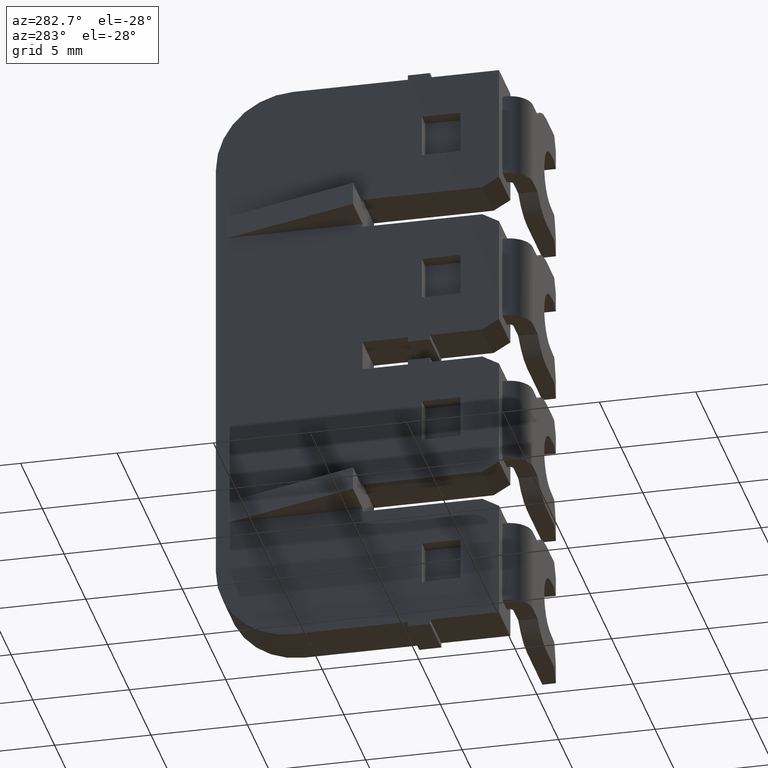
[diagram: clean part render]
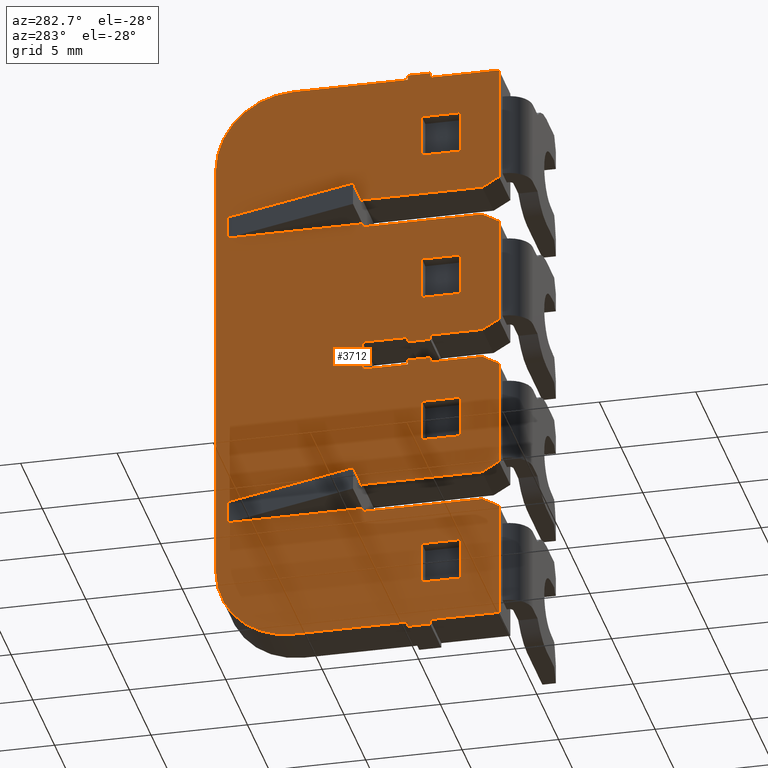
[diagram: same view with one face highlighted and labeled with its STEP entity id]
A machine part, auxiliary view. The second image highlights one B-rep face of the part: STEP entity #3712.
In plain terms, the highlighted planar face has unit normal (1, 0, -0).
Its self-contained STEP definition (entity closure, byte-faithful):
#25 = VECTOR ( 'NONE', #3469, 1000.000000000000000 ) ;
#26 = VECTOR ( 'NONE', #3461, 1000.000000000000000 ) ;
#28 = VECTOR ( 'NONE', #3502, 1000.000000000000000 ) ;
#30 = VECTOR ( 'NONE', #2299, 1000.000000000000000 ) ;
#51 = VECTOR ( 'NONE', #2448, 1000.000000000000000 ) ;
#54 = VECTOR ( 'NONE', #2279, 1000.000000000000000 ) ;
#64 = CIRCLE ( 'NONE', #91, 4.000000000000003600 ) ;
#69 = VECTOR ( 'NONE', #2362, 1000.000000000000000 ) ;
#72 = VECTOR ( 'NONE', #2409, 1000.000000000000000 ) ;
#74 = VECTOR ( 'NONE', #2357, 1000.000000000000000 ) ;
#79 = VECTOR ( 'NONE', #2340, 1000.000000000000000 ) ;
#89 = AXIS2_PLACEMENT_3D ( 'NONE', #2267, #2276, #2323 ) ;
#91 = AXIS2_PLACEMENT_3D ( 'NONE', #2284, #2306, #2290 ) ;
#94 = VECTOR ( 'NONE', #2312, 1000.000000000000000 ) ;
#96 = VECTOR ( 'NONE', #2350, 1000.000000000000000 ) ;
#98 = VECTOR ( 'NONE', #2329, 1000.000000000000000 ) ;
#102 = VECTOR ( 'NONE', #2436, 1000.000000000000000 ) ;
#105 = CIRCLE ( 'NONE', #89, 4.000000000000003600 ) ;
#106 = VECTOR ( 'NONE', #2339, 1000.000000000000000 ) ;
#116 = VECTOR ( 'NONE', #2455, 1000.000000000000000 ) ;
#149 = VECTOR ( 'NONE', #2466, 1000.000000000000000 ) ;
#159 = VECTOR ( 'NONE', #1721, 1000.000000000000000 ) ;
#161 = VECTOR ( 'NONE', #1726, 1000.000000000000000 ) ;
#162 = VECTOR ( 'NONE', #1700, 1000.000000000000000 ) ;
#165 = VECTOR ( 'NONE', #2464, 1000.000000000000000 ) ;
#166 = VECTOR ( 'NONE', #2477, 1000.000000000000000 ) ;
#170 = VECTOR ( 'NONE', #856, 1000.000000000000000 ) ;
#172 = VECTOR ( 'NONE', #1823, 1000.000000000000000 ) ;
#175 = VECTOR ( 'NONE', #863, 1000.000000000000000 ) ;
#213 = VECTOR ( 'NONE', #1822, 1000.000000000000000 ) ;
#217 = VECTOR ( 'NONE', #861, 1000.000000000000000 ) ;
#227 = VECTOR ( 'NONE', #1790, 1000.000000000000000 ) ;
#233 = VECTOR ( 'NONE', #917, 1000.000000000000100 ) ;
#238 = VECTOR ( 'NONE', #983, 1000.000000000000000 ) ;
#241 = VECTOR ( 'NONE', #1007, 1000.000000000000000 ) ;
#242 = VECTOR ( 'NONE', #1009, 1000.000000000000000 ) ;
#244 = VECTOR ( 'NONE', #1055, 1000.000000000000000 ) ;
#245 = VECTOR ( 'NONE', #980, 1000.000000000000100 ) ;
#253 = VECTOR ( 'NONE', #903, 1000.000000000000100 ) ;
#254 = VECTOR ( 'NONE', #952, 1000.000000000000000 ) ;
#255 = VECTOR ( 'NONE', #1006, 1000.000000000000000 ) ;
#259 = VECTOR ( 'NONE', #1025, 1000.000000000000100 ) ;
#262 = VECTOR ( 'NONE', #1035, 1000.000000000000100 ) ;
#264 = VECTOR ( 'NONE', #1038, 1000.000000000000000 ) ;
#267 = VECTOR ( 'NONE', #988, 1000.000000000000000 ) ;
#272 = VECTOR ( 'NONE', #1074, 1000.000000000000000 ) ;
#273 = VECTOR ( 'NONE', #1045, 1000.000000000000000 ) ;
#276 = VECTOR ( 'NONE', #953, 1000.000000000000000 ) ;
#277 = VECTOR ( 'NONE', #987, 1000.000000000000000 ) ;
#280 = VECTOR ( 'NONE', #1001, 1000.000000000000000 ) ;
#284 = VECTOR ( 'NONE', #1072, 1000.000000000000000 ) ;
#286 = VECTOR ( 'NONE', #1062, 1000.000000000000000 ) ;
#290 = VECTOR ( 'NONE', #944, 1000.000000000000000 ) ;
#292 = VECTOR ( 'NONE', #1023, 1000.000000000000000 ) ;
#307 = VECTOR ( 'NONE', #1046, 1000.000000000000000 ) ;
#308 = VECTOR ( 'NONE', #1204, 1000.000000000000000 ) ;
#314 = VECTOR ( 'NONE', #1264, 1000.000000000000000 ) ;
#316 = VECTOR ( 'NONE', #1237, 1000.000000000000100 ) ;
#319 = VECTOR ( 'NONE', #1185, 1000.000000000000000 ) ;
#323 = VECTOR ( 'NONE', #1256, 1000.000000000000000 ) ;
#325 = VECTOR ( 'NONE', #1240, 1000.000000000000000 ) ;
#333 = VECTOR ( 'NONE', #1182, 1000.000000000000000 ) ;
#342 = VECTOR ( 'NONE', #1098, 1000.000000000000000 ) ;
#368 = VECTOR ( 'NONE', #1254, 1000.000000000000000 ) ;
#376 = VECTOR ( 'NONE', #1261, 1000.000000000000000 ) ;
#388 = VECTOR ( 'NONE', #1245, 1000.000000000000000 ) ;
#657 = AXIS2_PLACEMENT_3D ( 'NONE', #6003, #5976, #5979 ) ;
#856 = DIRECTION ( 'NONE',  ( 3.538835890992685300E-015, -1.000000000000000000, -1.150239550150604000E-029 ) ) ;
#859 = LINE ( 'NONE', #864, #170 ) ;
#861 = DIRECTION ( 'NONE',  ( 3.497202527569245500E-015, 1.237602582263238000E-029, 1.000000000000000000 ) ) ;
#863 = DIRECTION ( 'NONE',  ( 3.538835890992685300E-015, -1.000000000000000000, -1.150239550150604000E-029 ) ) ;
#864 = CARTESIAN_POINT ( 'NONE',  ( 1512.445209356660100, 1094.934526901996200, -3.000000000000000000 ) ) ;
#876 = LINE ( 'NONE', #893, #217 ) ;
#887 = LINE ( 'NONE', #889, #175 ) ;
#889 = CARTESIAN_POINT ( 'NONE',  ( 1512.445209356660100, 1094.934526901996200, -19.30000000000000100 ) ) ;
#893 = CARTESIAN_POINT ( 'NONE',  ( 1512.445209356660100, 1084.259529724810100, 7.349999999999999600 ) ) ;
#898 = LINE ( 'NONE', #922, #233 ) ;
#903 = DIRECTION ( 'NONE',  ( 4.798054992358783100E-015, -0.8660254037844383700, 0.5000000000000003300 ) ) ;
#912 = CARTESIAN_POINT ( 'NONE',  ( 1512.445209356660100, 1084.259529724810100, 7.349999999999999600 ) ) ;
#917 = DIRECTION ( 'NONE',  ( 4.798054992358783100E-015, -0.8660254037844383700, 0.5000000000000003300 ) ) ;
#918 = LINE ( 'NONE', #925, #253 ) ;
#920 = LINE ( 'NONE', #977, #277 ) ;
#922 = CARTESIAN_POINT ( 'NONE',  ( 1512.445209356664900, 1080.259529724810100, 1.250000000000000000 ) ) ;
#925 = CARTESIAN_POINT ( 'NONE',  ( 1512.445209356664900, 1080.259529724810100, -6.899999999999999500 ) ) ;
#937 = LINE ( 'NONE', #912, #290 ) ;
#944 = DIRECTION ( 'NONE',  ( 3.497202527569245500E-015, 1.237602582263238000E-029, 1.000000000000000000 ) ) ;
#952 = DIRECTION ( 'NONE',  ( 0.0000000000000000000, 0.0000000000000000000, -1.000000000000000000 ) ) ;
#953 = DIRECTION ( 'NONE',  ( -3.250333119651810100E-015, -2.521813793387420200E-016, -1.000000000000000000 ) ) ;
#954 = CARTESIAN_POINT ( 'NONE',  ( 1512.445209356664900, 1080.259529724810100, -23.55000000000000100 ) ) ;
#957 = LINE ( 'NONE', #954, #276 ) ;
#961 = CARTESIAN_POINT ( 'NONE',  ( 1512.445209356660100, 1094.934526901996200, -8.949999999999999300 ) ) ;
#965 = CARTESIAN_POINT ( 'NONE',  ( 1512.445209356660100, 1084.984526901990000, -6.811429166743640600 ) ) ;
#972 = LINE ( 'NONE', #961, #238 ) ;
#974 = LINE ( 'NONE', #979, #245 ) ;
#977 = CARTESIAN_POINT ( 'NONE',  ( 1512.445209356660100, 1083.834526901990100, -8.849999996186419100 ) ) ;
#979 = CARTESIAN_POINT ( 'NONE',  ( 1512.445209356664900, 1080.259529724810100, -1.300000000000000000 ) ) ;
#980 = DIRECTION ( 'NONE',  ( -1.547721872706975700E-015, 0.8660254037844383700, 0.5000000000000003300 ) ) ;
#983 = DIRECTION ( 'NONE',  ( 3.663735981263015800E-015, -1.000000000000000000, 1.096746120592179900E-016 ) ) ;
#984 = LINE ( 'NONE', #986, #267 ) ;
#986 = CARTESIAN_POINT ( 'NONE',  ( 1512.445209356660100, 1094.934526901996200, -15.54999999999999900 ) ) ;
#987 = DIRECTION ( 'NONE',  ( 0.0000000000000000000, 0.0000000000000000000, 1.000000000000000000 ) ) ;
#988 = DIRECTION ( 'NONE',  ( -3.663735981263015800E-015, 1.000000000000000000, -4.682231220498579100E-017 ) ) ;
#989 = LINE ( 'NONE', #1026, #242 ) ;
#991 = LINE ( 'NONE', #965, #254 ) ;
#993 = LINE ( 'NONE', #1012, #241 ) ;
#995 = LINE ( 'NONE', #1033, #259 ) ;
#996 = LINE ( 'NONE', #1010, #262 ) ;
#1000 = LINE ( 'NONE', #1008, #255 ) ;
#1001 = DIRECTION ( 'NONE',  ( 3.538835890992685300E-015, -1.000000000000000000, -1.150239550150604000E-029 ) ) ;
#1003 = CARTESIAN_POINT ( 'NONE',  ( 1512.445209356660100, 1084.984526901990000, -9.742155379120198700 ) ) ;
#1004 = CARTESIAN_POINT ( 'NONE',  ( 1512.445209356660100, 1094.934526901996200, -11.15000000000000000 ) ) ;
#1006 = DIRECTION ( 'NONE',  ( -3.663735981263015800E-015, 1.000000000000000000, 4.682231220492459300E-017 ) ) ;
#1007 = DIRECTION ( 'NONE',  ( 3.497202527569245500E-015, 1.237602582263238000E-029, 1.000000000000000000 ) ) ;
#1008 = CARTESIAN_POINT ( 'NONE',  ( 1512.445209356660100, 1094.934526901996200, -0.8000000000000000400 ) ) ;
#1009 = DIRECTION ( 'NONE',  ( 3.663735981263015800E-015, -1.000000000000000000, -1.096746120591567900E-016 ) ) ;
#1010 = CARTESIAN_POINT ( 'NONE',  ( 1512.445209356664900, 1080.259529724810100, -17.60000000000000100 ) ) ;
#1011 = LINE ( 'NONE', #1004, #280 ) ;
#1012 = CARTESIAN_POINT ( 'NONE',  ( 1512.445209356660100, 1084.259529724810100, 7.349999999999999600 ) ) ;
#1018 = CARTESIAN_POINT ( 'NONE',  ( 1512.445209356660100, 1094.934526901996200, -17.10000000000000100 ) ) ;
#1019 = LINE ( 'NONE', #1085, #284 ) ;
#1023 = DIRECTION ( 'NONE',  ( 0.0000000000000000000, 0.0000000000000000000, -1.000000000000000000 ) ) ;
#1025 = DIRECTION ( 'NONE',  ( -4.798054992358794100E-015, 0.8660254037844383700, -0.5000000000000003300 ) ) ;
#1026 = CARTESIAN_POINT ( 'NONE',  ( 1512.445209356660100, 1094.934526901996200, 0.7500000000000000000 ) ) ;
#1027 = LINE ( 'NONE', #1003, #292 ) ;
#1028 = LINE ( 'NONE', #1108, #342 ) ;
#1033 = CARTESIAN_POINT ( 'NONE',  ( 1512.445209356664900, 1080.259529724810100, -15.04999999999999900 ) ) ;
#1035 = DIRECTION ( 'NONE',  ( 1.547721872706970800E-015, -0.8660254037844383700, -0.5000000000000003300 ) ) ;
#1037 = LINE ( 'NONE', #1018, #264 ) ;
#1038 = DIRECTION ( 'NONE',  ( 3.663735981263015800E-015, -1.000000000000000000, 1.096746120592179900E-016 ) ) ;
#1043 = LINE ( 'NONE', #1054, #272 ) ;
#1045 = DIRECTION ( 'NONE',  ( 3.250333119651810100E-015, -2.521813793386570200E-016, 1.000000000000000000 ) ) ;
#1046 = DIRECTION ( 'NONE',  ( 3.497202527569245500E-015, 1.237602582263238000E-029, 1.000000000000000000 ) ) ;
#1054 = CARTESIAN_POINT ( 'NONE',  ( 1512.445209356660100, 1094.934526901996200, -21.50000000000000000 ) ) ;
#1055 = DIRECTION ( 'NONE',  ( -3.538835890992685300E-015, 1.000000000000000000, 1.150239550150604000E-029 ) ) ;
#1062 = DIRECTION ( 'NONE',  ( -3.538835890992685300E-015, 1.000000000000000000, 1.150239550150604000E-029 ) ) ;
#1063 = CARTESIAN_POINT ( 'NONE',  ( 1512.445209356660100, 1094.934526901996200, -5.200000000000000200 ) ) ;
#1068 = CARTESIAN_POINT ( 'NONE',  ( 1512.445209356660100, 1094.934526901996200, 2.949999999999999700 ) ) ;
#1069 = LINE ( 'NONE', #1063, #244 ) ;
#1072 = DIRECTION ( 'NONE',  ( 0.0000000000000000000, 0.0000000000000000000, 1.000000000000000000 ) ) ;
#1074 = DIRECTION ( 'NONE',  ( -3.538835890992685300E-015, 1.000000000000000000, 1.150239550150604000E-029 ) ) ;
#1075 = CARTESIAN_POINT ( 'NONE',  ( 1512.445209356660100, 1087.334526901996000, -0.8000000000000000400 ) ) ;
#1081 = LINE ( 'NONE', #1075, #273 ) ;
#1082 = LINE ( 'NONE', #1068, #286 ) ;
#1083 = LINE ( 'NONE', #1087, #307 ) ;
#1085 = CARTESIAN_POINT ( 'NONE',  ( 1512.445209356660100, 1083.834526901990100, -7.500000003813629400 ) ) ;
#1087 = CARTESIAN_POINT ( 'NONE',  ( 1512.445209356660100, 1084.259529724810100, 7.349999999999999600 ) ) ;
#1098 = DIRECTION ( 'NONE',  ( -3.497202527569245500E-015, -1.237602582263238000E-029, -1.000000000000000000 ) ) ;
#1108 = CARTESIAN_POINT ( 'NONE',  ( 1512.445209356660100, 1082.259529724810100, 7.349999999999999600 ) ) ;
#1179 = CARTESIAN_POINT ( 'NONE',  ( 1512.445209356660100, 1094.934526901996200, -8.949999999999999300 ) ) ;
#1180 = LINE ( 'NONE', #1187, #319 ) ;
#1182 = DIRECTION ( 'NONE',  ( -3.497202527569245500E-015, -1.237602582263238000E-029, -1.000000000000000000 ) ) ;
#1185 = DIRECTION ( 'NONE',  ( -3.497202527569245500E-015, -1.237602582263238000E-029, -1.000000000000000000 ) ) ;
#1187 = CARTESIAN_POINT ( 'NONE',  ( 1512.445209356660100, 1082.259529724810100, 7.349999999999999600 ) ) ;
#1204 = DIRECTION ( 'NONE',  ( 3.663735981263015800E-015, -1.000000000000000000, 1.096746120592179900E-016 ) ) ;
#1206 = LINE ( 'NONE', #1208, #333 ) ;
#1208 = CARTESIAN_POINT ( 'NONE',  ( 1512.445209356660100, 1082.259529724810100, 7.349999999999999600 ) ) ;
#1214 = LINE ( 'NONE', #1179, #308 ) ;
#1226 = LINE ( 'NONE', #1238, #376 ) ;
#1231 = CARTESIAN_POINT ( 'NONE',  ( 1512.445209356660100, 1084.834526901990100, -8.699999996186420500 ) ) ;
#1237 = DIRECTION ( 'NONE',  ( 1.547721872706970800E-015, -0.8660254037844383700, -0.5000000000000003300 ) ) ;
#1238 = CARTESIAN_POINT ( 'NONE',  ( 1512.445209356660100, 1082.259529724810100, 7.349999999999999600 ) ) ;
#1239 = CARTESIAN_POINT ( 'NONE',  ( 1512.445209356660100, 1094.934526901996200, -7.400000000000000400 ) ) ;
#1240 = DIRECTION ( 'NONE',  ( 0.0000000000000000000, -1.000000000000000000, 0.0000000000000000000 ) ) ;
#1241 = LINE ( 'NONE', #1246, #325 ) ;
#1245 = DIRECTION ( 'NONE',  ( 3.250333119651810100E-015, -2.521813793386570200E-016, 1.000000000000000000 ) ) ;
#1246 = CARTESIAN_POINT ( 'NONE',  ( 1512.445209356660100, 1084.834526901990100, -7.650000003813629800 ) ) ;
#1247 = LINE ( 'NONE', #1239, #368 ) ;
#1252 = LINE ( 'NONE', #1260, #388 ) ;
#1254 = DIRECTION ( 'NONE',  ( 3.663735981263015800E-015, -1.000000000000000000, -1.096746120591567900E-016 ) ) ;
#1256 = DIRECTION ( 'NONE',  ( 0.0000000000000000000, 1.000000000000000000, 0.0000000000000000000 ) ) ;
#1257 = CARTESIAN_POINT ( 'NONE',  ( 1512.445209356660100, 1094.934526901996200, -7.400000000000000400 ) ) ;
#1258 = LINE ( 'NONE', #1231, #323 ) ;
#1260 = CARTESIAN_POINT ( 'NONE',  ( 1512.445209356664900, 1080.259529724810100, 7.200000000000000200 ) ) ;
#1261 = DIRECTION ( 'NONE',  ( -3.497202527569245500E-015, -1.237602582263238000E-029, -1.000000000000000000 ) ) ;
#1263 = LINE ( 'NONE', #1257, #314 ) ;
#1264 = DIRECTION ( 'NONE',  ( 3.663735981263015800E-015, -1.000000000000000000, -1.096746120591567900E-016 ) ) ;
#1266 = CARTESIAN_POINT ( 'NONE',  ( 1512.445209356664900, 1080.259529724810100, -9.449999999999999300 ) ) ;
#1267 = LINE ( 'NONE', #1266, #316 ) ;
#1630 = LINE ( 'NONE', #1655, #162 ) ;
#1655 = CARTESIAN_POINT ( 'NONE',  ( 1512.445209356660100, 1094.334526901996000, -0.5500000000000000400 ) ) ;
#1700 = DIRECTION ( 'NONE',  ( 3.190924781433425100E-015, -2.521813793386575100E-016, 1.000000000000000000 ) ) ;
#1712 = LINE ( 'NONE', #1741, #159 ) ;
#1721 = DIRECTION ( 'NONE',  ( 3.250333119651810100E-015, -2.521813793386570200E-016, 1.000000000000000000 ) ) ;
#1726 = DIRECTION ( 'NONE',  ( 0.0000000000000000000, -1.000000000000000000, 0.0000000000000000000 ) ) ;
#1741 = CARTESIAN_POINT ( 'NONE',  ( 1512.445209356664900, 1080.259529724810100, 7.349999999999999600 ) ) ;
#1743 = LINE ( 'NONE', #1747, #161 ) ;
#1747 = CARTESIAN_POINT ( 'NONE',  ( 1512.445209356660100, 1084.834526901990100, -23.94999999999999900 ) ) ;
#1755 = LINE ( 'NONE', #1832, #213 ) ;
#1770 = LINE ( 'NONE', #1786, #227 ) ;
#1786 = CARTESIAN_POINT ( 'NONE',  ( 1512.445209356660100, 1087.334526901996000, 7.200000000000000200 ) ) ;
#1790 = DIRECTION ( 'NONE',  ( 3.250333119651810100E-015, -2.521813793386570200E-016, 1.000000000000000000 ) ) ;
#1808 = CARTESIAN_POINT ( 'NONE',  ( 1512.445209356660100, 1094.934526901996200, 5.150000000000000400 ) ) ;
#1819 = LINE ( 'NONE', #1808, #172 ) ;
#1822 = DIRECTION ( 'NONE',  ( -3.538835890992685300E-015, 1.000000000000000000, 1.150239550150604000E-029 ) ) ;
#1823 = DIRECTION ( 'NONE',  ( 3.538835890992685300E-015, -1.000000000000000000, -1.150239550150604000E-029 ) ) ;
#1832 = CARTESIAN_POINT ( 'NONE',  ( 1512.445209356660100, 1094.934526901996200, -13.35000000000000100 ) ) ;
#1859 = EDGE_CURVE ( 'NONE', #5129, #4454, #3377, .T. ) ;
#1873 = EDGE_CURVE ( 'NONE', #4457, #4478, #3487, .T. ) ;
#1881 = EDGE_CURVE ( 'NONE', #5141, #5117, #3510, .T. ) ;
#1890 = EDGE_CURVE ( 'NONE', #4448, #5138, #3490, .T. ) ;
#1892 = EDGE_CURVE ( 'NONE', #5121, #4435, #2297, .T. ) ;
#1893 = EDGE_CURVE ( 'NONE', #4454, #4448, #64, .T. ) ;
#1901 = EDGE_CURVE ( 'NONE', #5138, #4457, #105, .T. ) ;
#1903 = EDGE_CURVE ( 'NONE', #5143, #5139, #2341, .T. ) ;
#1904 = EDGE_CURVE ( 'NONE', #5098, #5115, #2281, .T. ) ;
#1906 = EDGE_CURVE ( 'NONE', #5139, #5089, #2325, .T. ) ;
#1913 = EDGE_CURVE ( 'NONE', #5143, #4436, #2342, .T. ) ;
#1916 = EDGE_CURVE ( 'NONE', #4423, #5100, #2318, .T. ) ;
#1919 = EDGE_CURVE ( 'NONE', #5115, #5129, #2328, .T. ) ;
#1923 = EDGE_CURVE ( 'NONE', #4478, #5118, #2400, .T. ) ;
#1933 = EDGE_CURVE ( 'NONE', #4446, #5099, #2374, .T. ) ;
#1937 = EDGE_CURVE ( 'NONE', #5089, #5140, #2415, .T. ) ;
#1938 = EDGE_CURVE ( 'NONE', #5099, #5122, #2437, .T. ) ;
#1949 = EDGE_CURVE ( 'NONE', #4475, #5121, #2442, .T. ) ;
#1956 = EDGE_CURVE ( 'NONE', #5141, #5098, #2479, .T. ) ;
#1957 = EDGE_CURVE ( 'NONE', #5096, #4435, #2474, .T. ) ;
#1959 = EDGE_CURVE ( 'NONE', #4465, #4436, #2435, .T. ) ;
#1984 = EDGE_CURVE ( 'NONE', #4423, #4446, #1630, .T. ) ;
#2004 = EDGE_CURVE ( 'NONE', #4420, #5117, #1712, .T. ) ;
#2007 = EDGE_CURVE ( 'NONE', #5118, #5096, #1743, .T. ) ;
#2013 = EDGE_CURVE ( 'NONE', #4445, #5100, #1770, .T. ) ;
#2031 = EDGE_CURVE ( 'NONE', #4966, #4548, #1755, .T. ) ;
#2034 = EDGE_CURVE ( 'NONE', #4495, #4986, #1819, .T. ) ;
#2057 = EDGE_CURVE ( 'NONE', #4548, #4492, #876, .T. ) ;
#2062 = EDGE_CURVE ( 'NONE', #4525, #4957, #859, .T. ) ;
#2066 = EDGE_CURVE ( 'NONE', #4496, #5014, #887, .T. ) ;
#2076 = EDGE_CURVE ( 'NONE', #4561, #4525, #937, .T. ) ;
#2079 = EDGE_CURVE ( 'NONE', #4497, #4535, #918, .T. ) ;
#2081 = EDGE_CURVE ( 'NONE', #4546, #4420, #898, .T. ) ;
#2087 = EDGE_CURVE ( 'NONE', #4536, #4507, #957, .T. ) ;
#2088 = EDGE_CURVE ( 'NONE', #4488, #4523, #991, .T. ) ;
#2092 = EDGE_CURVE ( 'NONE', #4494, #4514, #920, .T. ) ;
#2096 = EDGE_CURVE ( 'NONE', #4489, #4600, #972, .T. ) ;
#2100 = EDGE_CURVE ( 'NONE', #4509, #4498, #974, .T. ) ;
#2101 = EDGE_CURVE ( 'NONE', #4486, #4465, #984, .T. ) ;
#2102 = EDGE_CURVE ( 'NONE', #4538, #4496, #993, .T. ) ;
#2104 = EDGE_CURVE ( 'NONE', #4498, #4445, #1000, .T. ) ;
#2106 = EDGE_CURVE ( 'NONE', #4507, #4486, #995, .T. ) ;
#2108 = EDGE_CURVE ( 'NONE', #5122, #4546, #989, .T. ) ;
#2109 = EDGE_CURVE ( 'NONE', #4544, #4475, #996, .T. ) ;
#2110 = EDGE_CURVE ( 'NONE', #4490, #4600, #1027, .T. ) ;
#2112 = EDGE_CURVE ( 'NONE', #4492, #5008, #1011, .T. ) ;
#2115 = EDGE_CURVE ( 'NONE', #5140, #4544, #1037, .T. ) ;
#2118 = EDGE_CURVE ( 'NONE', #4519, #4542, #1019, .T. ) ;
#2119 = EDGE_CURVE ( 'NONE', #4993, #4561, #1069, .T. ) ;
#2120 = EDGE_CURVE ( 'NONE', #5017, #4532, #1082, .T. ) ;
#2127 = EDGE_CURVE ( 'NONE', #4947, #4538, #1043, .T. ) ;
#2130 = EDGE_CURVE ( 'NONE', #4489, #4541, #1081, .T. ) ;
#2133 = EDGE_CURVE ( 'NONE', #4532, #4495, #1083, .T. ) ;
#2140 = EDGE_CURVE ( 'NONE', #5008, #4966, #1028, .T. ) ;
#2167 = EDGE_CURVE ( 'NONE', #4957, #4993, #1180, .T. ) ;
#2169 = EDGE_CURVE ( 'NONE', #4494, #4545, #1214, .T. ) ;
#2176 = EDGE_CURVE ( 'NONE', #5014, #4947, #1206, .T. ) ;
#2181 = EDGE_CURVE ( 'NONE', #4541, #4488, #1263, .T. ) ;
#2182 = EDGE_CURVE ( 'NONE', #4523, #4519, #1241, .T. ) ;
#2183 = EDGE_CURVE ( 'NONE', #4514, #4490, #1258, .T. ) ;
#2184 = EDGE_CURVE ( 'NONE', #4545, #4536, #1267, .T. ) ;
#2190 = EDGE_CURVE ( 'NONE', #4986, #5017, #1226, .T. ) ;
#2192 = EDGE_CURVE ( 'NONE', #4542, #4497, #1247, .T. ) ;
#2193 = EDGE_CURVE ( 'NONE', #4535, #4509, #1252, .T. ) ;
#2267 = CARTESIAN_POINT ( 'NONE',  ( 1512.445209356660100, 1090.934526901996200, -19.69999999999999900 ) ) ;
#2276 = DIRECTION ( 'NONE',  ( -1.000000000000000000, -3.538835890992685300E-015, 3.497202527569245500E-015 ) ) ;
#2277 = CARTESIAN_POINT ( 'NONE',  ( 1512.445209356660100, 1094.934526901996200, 7.349999999999999600 ) ) ;
#2279 = DIRECTION ( 'NONE',  ( -3.538835890992685300E-015, 1.000000000000000000, -7.422753022654887400E-029 ) ) ;
#2281 = LINE ( 'NONE', #2337, #94 ) ;
#2284 = CARTESIAN_POINT ( 'NONE',  ( 1512.445209356660100, 1090.934526901996200, 3.350000000000000100 ) ) ;
#2290 = DIRECTION ( 'NONE',  ( 0.0000000000000000000, 1.000000000000000000, 8.673617379884027600E-016 ) ) ;
#2295 = CARTESIAN_POINT ( 'NONE',  ( 1512.445209356660100, 1094.934526901996200, -23.69999999999999900 ) ) ;
#2297 = LINE ( 'NONE', #2295, #54 ) ;
#2299 = DIRECTION ( 'NONE',  ( -3.497202527569245500E-015, -9.239259932875879000E-031, -1.000000000000000000 ) ) ;
#2306 = DIRECTION ( 'NONE',  ( -1.000000000000000000, -3.538835890992685300E-015, 3.497202527569245500E-015 ) ) ;
#2312 = DIRECTION ( 'NONE',  ( 0.0000000000000000000, 1.000000000000000000, 0.0000000000000000000 ) ) ;
#2316 = CARTESIAN_POINT ( 'NONE',  ( 1512.445209356660100, 1087.334526901996000, -15.72500000000000000 ) ) ;
#2318 = LINE ( 'NONE', #2321, #98 ) ;
#2319 = CARTESIAN_POINT ( 'NONE',  ( 1512.445209356660100, 1094.334526901996000, -15.80000000000000100 ) ) ;
#2321 = CARTESIAN_POINT ( 'NONE',  ( 1512.445209356660100, 1087.334526901996000, -0.6250000000000000000 ) ) ;
#2323 = DIRECTION ( 'NONE',  ( 0.0000000000000000000, 1.000000000000000000, 0.0000000000000000000 ) ) ;
#2325 = LINE ( 'NONE', #2332, #96 ) ;
#2328 = LINE ( 'NONE', #2376, #69 ) ;
#2329 = DIRECTION ( 'NONE',  ( 3.538835890992685300E-015, -1.000000000000000000, -1.096746120591573800E-016 ) ) ;
#2332 = CARTESIAN_POINT ( 'NONE',  ( 1512.445209356660100, 1087.334526901996000, -16.92500000000000100 ) ) ;
#2337 = CARTESIAN_POINT ( 'NONE',  ( 1512.445209356660100, 1084.834526901990100, 7.599999999999999600 ) ) ;
#2339 = DIRECTION ( 'NONE',  ( -3.309741457870194800E-015, -2.521813793387425100E-016, -1.000000000000000000 ) ) ;
#2340 = DIRECTION ( 'NONE',  ( 3.538835890992685300E-015, -1.000000000000000000, 1.096746120592191800E-016 ) ) ;
#2341 = LINE ( 'NONE', #2319, #106 ) ;
#2342 = LINE ( 'NONE', #2316, #79 ) ;
#2350 = DIRECTION ( 'NONE',  ( 3.538835890992685300E-015, -1.000000000000000000, 1.096746120592191800E-016 ) ) ;
#2357 = DIRECTION ( 'NONE',  ( 0.0000000000000000000, 0.0000000000000000000, -1.000000000000000000 ) ) ;
#2362 = DIRECTION ( 'NONE',  ( 0.0000000000000000000, 0.0000000000000000000, -1.000000000000000000 ) ) ;
#2374 = LINE ( 'NONE', #2397, #102 ) ;
#2376 = CARTESIAN_POINT ( 'NONE',  ( 1512.445209356660100, 1084.984526901990000, 6.702118002048079500 ) ) ;
#2384 = CARTESIAN_POINT ( 'NONE',  ( 1512.445209356660100, 1084.984526901990000, -23.24450342525155100 ) ) ;
#2397 = CARTESIAN_POINT ( 'NONE',  ( 1512.445209356660100, 1087.334526901996000, 0.5749999999999999600 ) ) ;
#2400 = LINE ( 'NONE', #2384, #74 ) ;
#2409 = DIRECTION ( 'NONE',  ( 3.250333119651810100E-015, -2.521813793386570200E-016, 1.000000000000000000 ) ) ;
#2415 = LINE ( 'NONE', #2418, #51 ) ;
#2418 = CARTESIAN_POINT ( 'NONE',  ( 1512.445209356660100, 1087.334526901996000, -23.69999999999999900 ) ) ;
#2435 = LINE ( 'NONE', #2492, #149 ) ;
#2436 = DIRECTION ( 'NONE',  ( 3.538835890992685300E-015, -1.000000000000000000, -1.096746120591573800E-016 ) ) ;
#2437 = LINE ( 'NONE', #2443, #72 ) ;
#2442 = LINE ( 'NONE', #2480, #116 ) ;
#2443 = CARTESIAN_POINT ( 'NONE',  ( 1512.445209356660100, 1087.334526901996000, 7.349999999999999600 ) ) ;
#2448 = DIRECTION ( 'NONE',  ( -3.250333119651810100E-015, -2.521813793387420200E-016, -1.000000000000000000 ) ) ;
#2455 = DIRECTION ( 'NONE',  ( -3.250333119651810100E-015, -2.521813793387420200E-016, -1.000000000000000000 ) ) ;
#2458 = CARTESIAN_POINT ( 'NONE',  ( 1512.445209356660100, 1083.834526901990100, 7.450000000000000200 ) ) ;
#2464 = DIRECTION ( 'NONE',  ( 0.0000000000000000000, 0.0000000000000000000, 1.000000000000000000 ) ) ;
#2466 = DIRECTION ( 'NONE',  ( -3.250333119651810100E-015, -2.521813793387420200E-016, -1.000000000000000000 ) ) ;
#2474 = LINE ( 'NONE', #2494, #165 ) ;
#2477 = DIRECTION ( 'NONE',  ( 0.0000000000000000000, 0.0000000000000000000, 1.000000000000000000 ) ) ;
#2479 = LINE ( 'NONE', #2458, #166 ) ;
#2480 = CARTESIAN_POINT ( 'NONE',  ( 1512.445209356664900, 1080.259529724810100, -23.69999999999999900 ) ) ;
#2492 = CARTESIAN_POINT ( 'NONE',  ( 1512.445209356660100, 1087.334526901996000, -23.55000000000000100 ) ) ;
#2494 = CARTESIAN_POINT ( 'NONE',  ( 1512.445209356660100, 1083.834526901990100, -23.80000000000000100 ) ) ;
#2742 = ORIENTED_EDGE ( 'NONE', *, *, #1933, .T. ) ;
#2743 = ORIENTED_EDGE ( 'NONE', *, *, #1938, .T. ) ;
#2745 = ORIENTED_EDGE ( 'NONE', *, *, #2181, .T. ) ;
#2753 = ORIENTED_EDGE ( 'NONE', *, *, #2108, .T. ) ;
#2754 = ORIENTED_EDGE ( 'NONE', *, *, #2104, .T. ) ;
#2766 = ORIENTED_EDGE ( 'NONE', *, *, #2118, .T. ) ;
#2770 = ORIENTED_EDGE ( 'NONE', *, *, #2079, .T. ) ;
#2792 = ORIENTED_EDGE ( 'NONE', *, *, #2088, .T. ) ;
#2803 = ORIENTED_EDGE ( 'NONE', *, *, #1873, .T. ) ;
#2804 = ORIENTED_EDGE ( 'NONE', *, *, #1919, .T. ) ;
#2805 = ORIENTED_EDGE ( 'NONE', *, *, #2193, .T. ) ;
#2806 = ORIENTED_EDGE ( 'NONE', *, *, #1949, .F. ) ;
#2808 = ORIENTED_EDGE ( 'NONE', *, *, #2031, .T. ) ;
#2809 = ORIENTED_EDGE ( 'NONE', *, *, #2112, .T. ) ;
#2810 = ORIENTED_EDGE ( 'NONE', *, *, #1893, .T. ) ;
#2811 = ORIENTED_EDGE ( 'NONE', *, *, #2106, .F. ) ;
#2813 = ORIENTED_EDGE ( 'NONE', *, *, #2087, .F. ) ;
#2814 = ORIENTED_EDGE ( 'NONE', *, *, #2066, .T. ) ;
#2815 = ORIENTED_EDGE ( 'NONE', *, *, #2100, .T. ) ;
#2816 = ORIENTED_EDGE ( 'NONE', *, *, #2096, .F. ) ;
#2817 = ORIENTED_EDGE ( 'NONE', *, *, #2076, .T. ) ;
#2819 = ORIENTED_EDGE ( 'NONE', *, *, #2169, .F. ) ;
#2820 = ORIENTED_EDGE ( 'NONE', *, *, #2110, .T. ) ;
#2821 = ORIENTED_EDGE ( 'NONE', *, *, #2127, .T. ) ;
#2823 = ORIENTED_EDGE ( 'NONE', *, *, #2182, .T. ) ;
#2825 = ORIENTED_EDGE ( 'NONE', *, *, #2034, .T. ) ;
#2826 = ORIENTED_EDGE ( 'NONE', *, *, #1892, .F. ) ;
#2827 = ORIENTED_EDGE ( 'NONE', *, *, #2007, .T. ) ;
#2828 = ORIENTED_EDGE ( 'NONE', *, *, #2119, .T. ) ;
#2829 = ORIENTED_EDGE ( 'NONE', *, *, #1906, .F. ) ;
#2830 = ORIENTED_EDGE ( 'NONE', *, *, #2081, .T. ) ;
#2831 = ORIENTED_EDGE ( 'NONE', *, *, #2013, .T. ) ;
#2832 = ORIENTED_EDGE ( 'NONE', *, *, #2101, .F. ) ;
#2833 = ORIENTED_EDGE ( 'NONE', *, *, #1904, .T. ) ;
#2834 = ORIENTED_EDGE ( 'NONE', *, *, #2115, .F. ) ;
#2835 = ORIENTED_EDGE ( 'NONE', *, *, #2102, .T. ) ;
#2836 = ORIENTED_EDGE ( 'NONE', *, *, #2183, .T. ) ;
#2837 = ORIENTED_EDGE ( 'NONE', *, *, #2184, .F. ) ;
#2838 = ORIENTED_EDGE ( 'NONE', *, *, #1923, .T. ) ;
#2839 = ORIENTED_EDGE ( 'NONE', *, *, #1913, .T. ) ;
#2840 = ORIENTED_EDGE ( 'NONE', *, *, #2130, .T. ) ;
#2841 = ORIENTED_EDGE ( 'NONE', *, *, #1959, .F. ) ;
#2842 = ORIENTED_EDGE ( 'NONE', *, *, #2176, .T. ) ;
#2843 = ORIENTED_EDGE ( 'NONE', *, *, #2092, .T. ) ;
#2844 = ORIENTED_EDGE ( 'NONE', *, *, #2190, .T. ) ;
#2845 = ORIENTED_EDGE ( 'NONE', *, *, #2192, .T. ) ;
#2847 = ORIENTED_EDGE ( 'NONE', *, *, #1890, .T. ) ;
#2848 = ORIENTED_EDGE ( 'NONE', *, *, #1903, .F. ) ;
#2849 = ORIENTED_EDGE ( 'NONE', *, *, #1881, .F. ) ;
#2850 = ORIENTED_EDGE ( 'NONE', *, *, #1916, .F. ) ;
#2851 = ORIENTED_EDGE ( 'NONE', *, *, #2133, .T. ) ;
#2853 = ORIENTED_EDGE ( 'NONE', *, *, #2062, .T. ) ;
#2854 = ORIENTED_EDGE ( 'NONE', *, *, #2167, .T. ) ;
#2855 = ORIENTED_EDGE ( 'NONE', *, *, #1937, .F. ) ;
#2856 = ORIENTED_EDGE ( 'NONE', *, *, #2109, .F. ) ;
#2857 = ORIENTED_EDGE ( 'NONE', *, *, #1901, .T. ) ;
#2858 = ORIENTED_EDGE ( 'NONE', *, *, #2120, .T. ) ;
#2859 = ORIENTED_EDGE ( 'NONE', *, *, #2057, .T. ) ;
#2860 = ORIENTED_EDGE ( 'NONE', *, *, #1957, .T. ) ;
#2861 = ORIENTED_EDGE ( 'NONE', *, *, #2004, .T. ) ;
#2863 = ORIENTED_EDGE ( 'NONE', *, *, #1859, .T. ) ;
#2864 = ORIENTED_EDGE ( 'NONE', *, *, #1984, .T. ) ;
#2865 = ORIENTED_EDGE ( 'NONE', *, *, #1956, .T. ) ;
#2918 = ORIENTED_EDGE ( 'NONE', *, *, #2140, .T. ) ;
#3377 = LINE ( 'NONE', #3444, #26 ) ;
#3444 = CARTESIAN_POINT ( 'NONE',  ( 1512.445209356660100, 1094.934526901996200, 7.349999999999999600 ) ) ;
#3461 = DIRECTION ( 'NONE',  ( -3.538835890992685300E-015, 1.000000000000000000, 1.225863708862687000E-029 ) ) ;
#3469 = DIRECTION ( 'NONE',  ( 3.538835890992685300E-015, -1.000000000000000000, -1.225863708862687000E-029 ) ) ;
#3487 = LINE ( 'NONE', #3508, #28 ) ;
#3490 = LINE ( 'NONE', #2277, #30 ) ;
#3499 = CARTESIAN_POINT ( 'NONE',  ( 1512.445209356660100, 1094.934526901996200, 7.349999999999999600 ) ) ;
#3502 = DIRECTION ( 'NONE',  ( 3.538835890992685300E-015, -1.000000000000000000, 7.422753022654887400E-029 ) ) ;
#3508 = CARTESIAN_POINT ( 'NONE',  ( 1512.445209356660100, 1094.934526901996200, -23.69999999999999900 ) ) ;
#3510 = LINE ( 'NONE', #3499, #25 ) ;
#3712 = ADVANCED_FACE ( 'NONE', ( #5999, #5969, #5998, #6001, #5995 ), #5986, .F. ) ;
#3987 = CARTESIAN_POINT ( 'NONE',  ( 1512.445209356664900, 1080.259529724810100, 1.250000000000000000 ) ) ;
#4008 = CARTESIAN_POINT ( 'NONE',  ( 1512.445209356660100, 1094.334526901996000, -0.6249999999999992200 ) ) ;
#4011 = CARTESIAN_POINT ( 'NONE',  ( 1512.445209356660100, 1083.834526901990100, -23.69999999999999900 ) ) ;
#4037 = CARTESIAN_POINT ( 'NONE',  ( 1512.445209356660100, 1087.334526901996000, -15.72500000000000000 ) ) ;
#4042 = CARTESIAN_POINT ( 'NONE',  ( 1512.445209356664900, 1081.125555128594000, -15.54999999999999900 ) ) ;
#4044 = CARTESIAN_POINT ( 'NONE',  ( 1512.445209356660100, 1084.259529724810100, -11.15000000000000000 ) ) ;
#4046 = CARTESIAN_POINT ( 'NONE',  ( 1512.445209356660100, 1083.834526901990100, -8.949999999999999300 ) ) ;
#4047 = CARTESIAN_POINT ( 'NONE',  ( 1512.445209356660100, 1084.259529724810100, 5.150000000000000400 ) ) ;
#4048 = CARTESIAN_POINT ( 'NONE',  ( 1512.445209356660100, 1084.984526901990000, -7.400000000000000400 ) ) ;
#4049 = CARTESIAN_POINT ( 'NONE',  ( 1512.445209356660100, 1090.934526901996200, -23.69999999999999900 ) ) ;
#4053 = CARTESIAN_POINT ( 'NONE',  ( 1512.445209356660100, 1084.984526901990000, -8.699999996186418700 ) ) ;
#4054 = CARTESIAN_POINT ( 'NONE',  ( 1512.445209356660100, 1084.259529724810100, -19.30000000000000100 ) ) ;
#4055 = CARTESIAN_POINT ( 'NONE',  ( 1512.445209356664900, 1081.125555128594000, -7.400000000000000400 ) ) ;
#4056 = CARTESIAN_POINT ( 'NONE',  ( 1512.445209356664900, 1081.125555128594000, -0.8000000000000000400 ) ) ;
#4057 = CARTESIAN_POINT ( 'NONE',  ( 1512.445209356664900, 1080.259529724810100, -17.60000000000000100 ) ) ;
#4069 = CARTESIAN_POINT ( 'NONE',  ( 1512.445209356660100, 1094.334526901996000, 0.5750000000000007300 ) ) ;
#4070 = CARTESIAN_POINT ( 'NONE',  ( 1512.445209356660100, 1094.934526901996200, 3.350000000000009400 ) ) ;
#4072 = CARTESIAN_POINT ( 'NONE',  ( 1512.445209356660100, 1087.334526901996000, -15.54999999999999900 ) ) ;
#4075 = CARTESIAN_POINT ( 'NONE',  ( 1512.445209356660100, 1084.984526901990000, -23.69999999999999900 ) ) ;
#4079 = CARTESIAN_POINT ( 'NONE',  ( 1512.445209356660100, 1090.934526901996200, 7.349999999999999600 ) ) ;
#4095 = CARTESIAN_POINT ( 'NONE',  ( 1512.445209356660100, 1087.334526901996000, -8.949999999999999300 ) ) ;
#4097 = CARTESIAN_POINT ( 'NONE',  ( 1512.445209356660100, 1087.334526901996000, -0.8000000000000000400 ) ) ;
#4101 = CARTESIAN_POINT ( 'NONE',  ( 1512.445209356660100, 1082.259529724810100, -21.50000000000000000 ) ) ;
#4102 = CARTESIAN_POINT ( 'NONE',  ( 1512.445209356660100, 1083.834526901990100, -7.650000003813635100 ) ) ;
#4104 = CARTESIAN_POINT ( 'NONE',  ( 1512.445209356660100, 1084.259529724810100, 2.949999999999999700 ) ) ;
#4105 = CARTESIAN_POINT ( 'NONE',  ( 1512.445209356660100, 1084.259529724810100, -21.50000000000000000 ) ) ;
#4110 = CARTESIAN_POINT ( 'NONE',  ( 1512.445209356660100, 1084.984526901990000, -8.949999999999999300 ) ) ;
#4112 = CARTESIAN_POINT ( 'NONE',  ( 1512.445209356660100, 1084.259529724810100, -5.200000000000000200 ) ) ;
#4115 = CARTESIAN_POINT ( 'NONE',  ( 1512.445209356664900, 1080.259529724810100, -9.449999999999999300 ) ) ;
#4120 = CARTESIAN_POINT ( 'NONE',  ( 1512.445209356664900, 1081.125555128594000, -8.949999999999999300 ) ) ;
#4130 = CARTESIAN_POINT ( 'NONE',  ( 1512.445209356664900, 1080.259529724810100, -15.04999999999999900 ) ) ;
#4134 = CARTESIAN_POINT ( 'NONE',  ( 1512.445209356664900, 1081.125555128594000, 0.7500000000000000000 ) ) ;
#4137 = CARTESIAN_POINT ( 'NONE',  ( 1512.445209356660100, 1087.334526901996000, -7.400000000000000400 ) ) ;
#4138 = CARTESIAN_POINT ( 'NONE',  ( 1512.445209356660100, 1083.834526901990100, -8.699999996186418700 ) ) ;
#4140 = CARTESIAN_POINT ( 'NONE',  ( 1512.445209356660100, 1084.259529724810100, -3.000000000000000000 ) ) ;
#4141 = CARTESIAN_POINT ( 'NONE',  ( 1512.445209356664900, 1080.259529724810100, -1.300000000000000000 ) ) ;
#4150 = CARTESIAN_POINT ( 'NONE',  ( 1512.445209356660100, 1083.834526901990100, -7.400000000000000400 ) ) ;
#4153 = CARTESIAN_POINT ( 'NONE',  ( 1512.445209356664900, 1080.259529724810100, -6.899999999999999500 ) ) ;
#4155 = CARTESIAN_POINT ( 'NONE',  ( 1512.445209356664900, 1081.125555128594000, -17.10000000000000100 ) ) ;
#4156 = CARTESIAN_POINT ( 'NONE',  ( 1512.445209356660100, 1084.259529724810100, -13.35000000000000100 ) ) ;
#4163 = CARTESIAN_POINT ( 'NONE',  ( 1512.445209356660100, 1084.984526901990000, -7.650000003813636900 ) ) ;
#4177 = CARTESIAN_POINT ( 'NONE',  ( 1512.445209356660100, 1082.259529724810100, 5.150000000000000400 ) ) ;
#4178 = CARTESIAN_POINT ( 'NONE',  ( 1512.445209356660100, 1082.259529724810100, -5.200000000000000200 ) ) ;
#4193 = CARTESIAN_POINT ( 'NONE',  ( 1512.445209356660100, 1082.259529724810100, -11.15000000000000000 ) ) ;
#4205 = CARTESIAN_POINT ( 'NONE',  ( 1512.445209356660100, 1082.259529724810100, -3.000000000000000000 ) ) ;
#4214 = CARTESIAN_POINT ( 'NONE',  ( 1512.445209356660100, 1082.259529724810100, -19.30000000000000100 ) ) ;
#4225 = CARTESIAN_POINT ( 'NONE',  ( 1512.445209356660100, 1082.259529724810100, -13.35000000000000100 ) ) ;
#4281 = CARTESIAN_POINT ( 'NONE',  ( 1512.445209356660100, 1082.259529724810100, 2.949999999999999700 ) ) ;
#4291 = CARTESIAN_POINT ( 'NONE',  ( 1512.445209356660100, 1094.334526901996000, -16.92500000000000100 ) ) ;
#4292 = CARTESIAN_POINT ( 'NONE',  ( 1512.445209356660100, 1087.334526901996000, -17.10000000000000100 ) ) ;
#4295 = CARTESIAN_POINT ( 'NONE',  ( 1512.445209356660100, 1080.259529724810100, -23.69999999999999900 ) ) ;
#4296 = CARTESIAN_POINT ( 'NONE',  ( 1512.445209356660100, 1083.834526901990100, 7.349999999999999600 ) ) ;
#4298 = CARTESIAN_POINT ( 'NONE',  ( 1512.445209356660100, 1087.334526901996000, -0.6250000000000005600 ) ) ;
#4302 = CARTESIAN_POINT ( 'NONE',  ( 1512.445209356660100, 1083.834526901990100, 7.600000000000014700 ) ) ;
#4306 = CARTESIAN_POINT ( 'NONE',  ( 1512.445209356660100, 1084.984526901990000, 7.600000000000014700 ) ) ;
#4310 = CARTESIAN_POINT ( 'NONE',  ( 1512.445209356660100, 1087.334526901996000, -16.92500000000000100 ) ) ;
#4311 = CARTESIAN_POINT ( 'NONE',  ( 1512.445209356660100, 1083.834526901990100, -23.94999999999998500 ) ) ;
#4314 = CARTESIAN_POINT ( 'NONE',  ( 1512.445209356660100, 1084.984526901990000, -23.94999999999998500 ) ) ;
#4320 = CARTESIAN_POINT ( 'NONE',  ( 1512.445209356660100, 1087.334526901996000, 0.5749999999999999600 ) ) ;
#4331 = CARTESIAN_POINT ( 'NONE',  ( 1512.445209356660100, 1080.259529724810100, 7.349999999999999600 ) ) ;
#4340 = CARTESIAN_POINT ( 'NONE',  ( 1512.445209356660100, 1087.334526901996000, 0.7500000000000000000 ) ) ;
#4348 = CARTESIAN_POINT ( 'NONE',  ( 1512.445209356660100, 1084.984526901990000, 7.349999999999999600 ) ) ;
#4353 = CARTESIAN_POINT ( 'NONE',  ( 1512.445209356660100, 1094.934526901996200, -19.69999999999999200 ) ) ;
#4384 = CARTESIAN_POINT ( 'NONE',  ( 1512.445209356660100, 1094.334526901995800, -15.72500000000000000 ) ) ;
#4420 = VERTEX_POINT ( 'NONE', #3987 ) ;
#4423 = VERTEX_POINT ( 'NONE', #4008 ) ;
#4435 = VERTEX_POINT ( 'NONE', #4011 ) ;
#4436 = VERTEX_POINT ( 'NONE', #4037 ) ;
#4445 = VERTEX_POINT ( 'NONE', #4097 ) ;
#4446 = VERTEX_POINT ( 'NONE', #4069 ) ;
#4448 = VERTEX_POINT ( 'NONE', #4070 ) ;
#4454 = VERTEX_POINT ( 'NONE', #4079 ) ;
#4457 = VERTEX_POINT ( 'NONE', #4049 ) ;
#4465 = VERTEX_POINT ( 'NONE', #4072 ) ;
#4475 = VERTEX_POINT ( 'NONE', #4057 ) ;
#4478 = VERTEX_POINT ( 'NONE', #4075 ) ;
#4486 = VERTEX_POINT ( 'NONE', #4042 ) ;
#4488 = VERTEX_POINT ( 'NONE', #4048 ) ;
#4489 = VERTEX_POINT ( 'NONE', #4095 ) ;
#4490 = VERTEX_POINT ( 'NONE', #4053 ) ;
#4492 = VERTEX_POINT ( 'NONE', #4044 ) ;
#4494 = VERTEX_POINT ( 'NONE', #4046 ) ;
#4495 = VERTEX_POINT ( 'NONE', #4047 ) ;
#4496 = VERTEX_POINT ( 'NONE', #4054 ) ;
#4497 = VERTEX_POINT ( 'NONE', #4055 ) ;
#4498 = VERTEX_POINT ( 'NONE', #4056 ) ;
#4507 = VERTEX_POINT ( 'NONE', #4130 ) ;
#4509 = VERTEX_POINT ( 'NONE', #4141 ) ;
#4514 = VERTEX_POINT ( 'NONE', #4138 ) ;
#4519 = VERTEX_POINT ( 'NONE', #4102 ) ;
#4523 = VERTEX_POINT ( 'NONE', #4163 ) ;
#4525 = VERTEX_POINT ( 'NONE', #4140 ) ;
#4532 = VERTEX_POINT ( 'NONE', #4104 ) ;
#4535 = VERTEX_POINT ( 'NONE', #4153 ) ;
#4536 = VERTEX_POINT ( 'NONE', #4115 ) ;
#4538 = VERTEX_POINT ( 'NONE', #4105 ) ;
#4541 = VERTEX_POINT ( 'NONE', #4137 ) ;
#4542 = VERTEX_POINT ( 'NONE', #4150 ) ;
#4544 = VERTEX_POINT ( 'NONE', #4155 ) ;
#4545 = VERTEX_POINT ( 'NONE', #4120 ) ;
#4546 = VERTEX_POINT ( 'NONE', #4134 ) ;
#4548 = VERTEX_POINT ( 'NONE', #4156 ) ;
#4561 = VERTEX_POINT ( 'NONE', #4112 ) ;
#4600 = VERTEX_POINT ( 'NONE', #4110 ) ;
#4713 = EDGE_LOOP ( 'NONE', ( #2817, #2853, #2854, #2828 ) ) ;
#4726 = EDGE_LOOP ( 'NONE', ( #2745, #2792, #2823, #2766, #2845, #2770, #2805, #2815, #2754, #2831, #2850, #2864, #2742, #2743, #2753, #2830, #2861, #2849, #2865, #2833, #2804, #2863, #2810, #2847, #2857, #2803, #2838, #2827, #2860, #2826, #2806, #2856, #2834, #2855, #2829, #2848, #2839, #2841, #2832, #2811, #2813, #2837, #2819, #2843, #2836, #2820, #2816, #2840 ) ) ;
#4739 = EDGE_LOOP ( 'NONE', ( #2859, #2809, #2918, #2808 ) ) ;
#4741 = EDGE_LOOP ( 'NONE', ( #2835, #2814, #2842, #2821 ) ) ;
#4749 = EDGE_LOOP ( 'NONE', ( #2851, #2825, #2844, #2858 ) ) ;
#4947 = VERTEX_POINT ( 'NONE', #4101 ) ;
#4957 = VERTEX_POINT ( 'NONE', #4205 ) ;
#4966 = VERTEX_POINT ( 'NONE', #4225 ) ;
#4986 = VERTEX_POINT ( 'NONE', #4177 ) ;
#4993 = VERTEX_POINT ( 'NONE', #4178 ) ;
#5008 = VERTEX_POINT ( 'NONE', #4193 ) ;
#5014 = VERTEX_POINT ( 'NONE', #4214 ) ;
#5017 = VERTEX_POINT ( 'NONE', #4281 ) ;
#5089 = VERTEX_POINT ( 'NONE', #4310 ) ;
#5096 = VERTEX_POINT ( 'NONE', #4311 ) ;
#5098 = VERTEX_POINT ( 'NONE', #4302 ) ;
#5099 = VERTEX_POINT ( 'NONE', #4320 ) ;
#5100 = VERTEX_POINT ( 'NONE', #4298 ) ;
#5115 = VERTEX_POINT ( 'NONE', #4306 ) ;
#5117 = VERTEX_POINT ( 'NONE', #4331 ) ;
#5118 = VERTEX_POINT ( 'NONE', #4314 ) ;
#5121 = VERTEX_POINT ( 'NONE', #4295 ) ;
#5122 = VERTEX_POINT ( 'NONE', #4340 ) ;
#5129 = VERTEX_POINT ( 'NONE', #4348 ) ;
#5138 = VERTEX_POINT ( 'NONE', #4353 ) ;
#5139 = VERTEX_POINT ( 'NONE', #4291 ) ;
#5140 = VERTEX_POINT ( 'NONE', #4292 ) ;
#5141 = VERTEX_POINT ( 'NONE', #4296 ) ;
#5143 = VERTEX_POINT ( 'NONE', #4384 ) ;
#5969 = FACE_BOUND ( 'NONE', #4741, .T. ) ;
#5976 = DIRECTION ( 'NONE',  ( 1.000000000000000000, 3.538835890992685300E-015, -3.497202527569244700E-015 ) ) ;
#5979 = DIRECTION ( 'NONE',  ( -3.497202527569245500E-015, 2.468694079174335000E-016, -1.000000000000000000 ) ) ;
#5986 = PLANE ( 'NONE',  #657 ) ;
#5995 = FACE_BOUND ( 'NONE', #4739, .T. ) ;
#5998 = FACE_BOUND ( 'NONE', #4713, .T. ) ;
#5999 = FACE_OUTER_BOUND ( 'NONE', #4726, .T. ) ;
#6001 = FACE_BOUND ( 'NONE', #4749, .T. ) ;
#6003 = CARTESIAN_POINT ( 'NONE',  ( 1512.445209356660100, 1094.934526901996200, 7.349999999999999600 ) ) ;